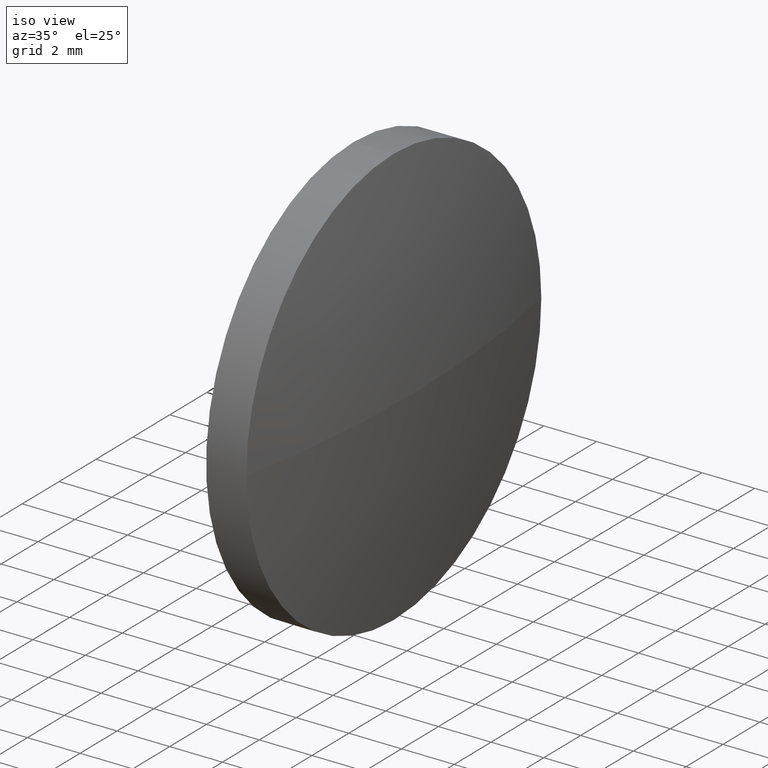
[diagram: clean part render]
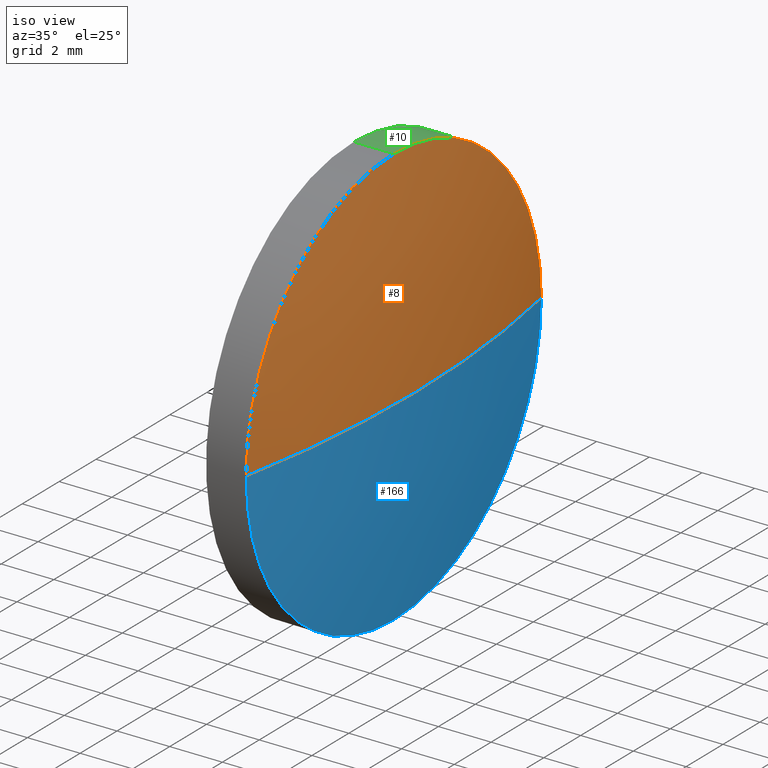
[diagram: same view with three faces highlighted in distinct colors, each labeled with its STEP entity id]
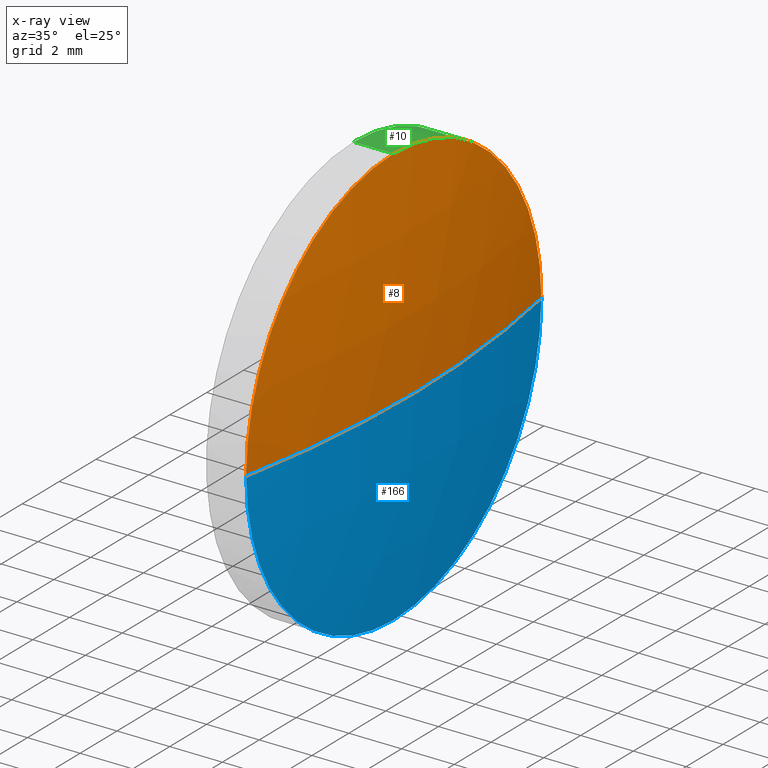
[diagram: x-ray of the same camera — body ghosted, the three highlighted faces saturated]
A machine part, iso view with three faces highlighted in distinct colors.
The next image is the same camera in x-ray (body ghosted, the three faces saturated) — at least one of them is partly hidden behind the body in this view.
Their STEP definitions:

[orange] entity #8 — the highlighted spherical surface has radius 41.4156 mm.
#5 = EDGE_LOOP ( 'NONE', ( #146, #112, #65, #143 ) ) ;
#7 = SPHERICAL_SURFACE ( 'NONE', #123, 41.41564102564085200 ) ;
#8 = ADVANCED_FACE ( 'NONE', ( #75 ), #7, .T. ) ;
#14 = EDGE_CURVE ( 'NONE', #33, #175, #99, .T. ) ;
#16 = CARTESIAN_POINT ( 'NONE',  ( 800.7893006300039400, 219.0208925470879300, 0.0000000000000000000 ) ) ;
#19 = CARTESIAN_POINT ( 'NONE',  ( 800.7893006300039400, 227.0208925470877000, 7.999999999999979600 ) ) ;
#29 = CARTESIAN_POINT ( 'NONE',  ( 760.1536596043630400, 227.0208925470879500, 0.0000000000000000000 ) ) ;
#31 = DIRECTION ( 'NONE',  ( -1.000000000000000000, 0.0000000000000000000, 0.0000000000000000000 ) ) ;
#33 = VERTEX_POINT ( 'NONE', #16 ) ;
#37 = EDGE_CURVE ( 'NONE', #38, #137, #95, .T. ) ;
#38 = VERTEX_POINT ( 'NONE', #69 ) ;
#42 = DIRECTION ( 'NONE',  ( 0.0000000000000000000, -1.224646799147353200E-016, 1.000000000000000000 ) ) ;
#52 = DIRECTION ( 'NONE',  ( 0.0000000000000000000, -1.000000000000000000, 0.0000000000000000000 ) ) ;
#53 = DIRECTION ( 'NONE',  ( -1.000000000000000000, -0.0000000000000000000, -0.0000000000000000000 ) ) ;
#60 = AXIS2_PLACEMENT_3D ( 'NONE', #29, #92, #31 ) ;
#65 = ORIENTED_EDGE ( 'NONE', *, *, #169, .F. ) ;
#69 = CARTESIAN_POINT ( 'NONE',  ( 801.5693006300040200, 227.0208925470879500, 0.0000000000000000000 ) ) ;
#73 = DIRECTION ( 'NONE',  ( 0.0000000000000000000, -1.000000000000000000, -1.224646799147353200E-016 ) ) ;
#74 = CARTESIAN_POINT ( 'NONE',  ( 760.1536596043630400, 227.0208925470879500, 0.0000000000000000000 ) ) ;
#75 = FACE_OUTER_BOUND ( 'NONE', #5, .T. ) ;
#85 = EDGE_CURVE ( 'NONE', #38, #33, #136, .T. ) ;
#90 = DIRECTION ( 'NONE',  ( 0.0000000000000000000, 0.0000000000000000000, 1.000000000000000000 ) ) ;
#92 = DIRECTION ( 'NONE',  ( 0.0000000000000000000, 0.0000000000000000000, -1.000000000000000000 ) ) ;
#95 = CIRCLE ( 'NONE', #163, 41.41564102564085200 ) ;
#99 = CIRCLE ( 'NONE', #171, 7.999999999999979600 ) ;
#105 = AXIS2_PLACEMENT_3D ( 'NONE', #119, #147, #90 ) ;
#111 = CIRCLE ( 'NONE', #105, 7.999999999999979600 ) ;
#112 = ORIENTED_EDGE ( 'NONE', *, *, #37, .T. ) ;
#119 = CARTESIAN_POINT ( 'NONE',  ( 800.7893006300039400, 227.0208925470877000, 0.0000000000000000000 ) ) ;
#123 = AXIS2_PLACEMENT_3D ( 'NONE', #74, #156, #52 ) ;
#127 = CARTESIAN_POINT ( 'NONE',  ( 760.1536596043630400, 227.0208925470879500, 0.0000000000000000000 ) ) ;
#134 = CARTESIAN_POINT ( 'NONE',  ( 800.7893006300039400, 235.0208925470877500, 9.797174393178569300E-016 ) ) ;
#136 = CIRCLE ( 'NONE', #60, 41.41564102564088000 ) ;
#137 = VERTEX_POINT ( 'NONE', #134 ) ;
#143 = ORIENTED_EDGE ( 'NONE', *, *, #14, .F. ) ;
#146 = ORIENTED_EDGE ( 'NONE', *, *, #85, .F. ) ;
#147 = DIRECTION ( 'NONE',  ( -1.000000000000000000, -0.0000000000000000000, -0.0000000000000000000 ) ) ;
#156 = DIRECTION ( 'NONE',  ( 0.0000000000000000000, 0.0000000000000000000, 1.000000000000000000 ) ) ;
#163 = AXIS2_PLACEMENT_3D ( 'NONE', #127, #42, #73 ) ;
#169 = EDGE_CURVE ( 'NONE', #175, #137, #111, .T. ) ;
#171 = AXIS2_PLACEMENT_3D ( 'NONE', #172, #53, #176 ) ;
#172 = CARTESIAN_POINT ( 'NONE',  ( 800.7893006300039400, 227.0208925470877000, 0.0000000000000000000 ) ) ;
#175 = VERTEX_POINT ( 'NONE', #19 ) ;
#176 = DIRECTION ( 'NONE',  ( 0.0000000000000000000, 0.0000000000000000000, 1.000000000000000000 ) ) ;

[blue] entity #166 — the highlighted spherical surface has radius 41.4156 mm.
#4 = DIRECTION ( 'NONE',  ( 0.0000000000000000000, -1.000000000000000000, 0.0000000000000000000 ) ) ;
#16 = CARTESIAN_POINT ( 'NONE',  ( 800.7893006300039400, 219.0208925470879300, 0.0000000000000000000 ) ) ;
#18 = AXIS2_PLACEMENT_3D ( 'NONE', #46, #28, #148 ) ;
#20 = SPHERICAL_SURFACE ( 'NONE', #25, 41.41564102564085200 ) ;
#25 = AXIS2_PLACEMENT_3D ( 'NONE', #149, #130, #4 ) ;
#28 = DIRECTION ( 'NONE',  ( -1.000000000000000000, -0.0000000000000000000, -0.0000000000000000000 ) ) ;
#29 = CARTESIAN_POINT ( 'NONE',  ( 760.1536596043630400, 227.0208925470879500, 0.0000000000000000000 ) ) ;
#31 = DIRECTION ( 'NONE',  ( -1.000000000000000000, 0.0000000000000000000, 0.0000000000000000000 ) ) ;
#33 = VERTEX_POINT ( 'NONE', #16 ) ;
#37 = EDGE_CURVE ( 'NONE', #38, #137, #95, .T. ) ;
#38 = VERTEX_POINT ( 'NONE', #69 ) ;
#42 = DIRECTION ( 'NONE',  ( 0.0000000000000000000, -1.224646799147353200E-016, 1.000000000000000000 ) ) ;
#45 = AXIS2_PLACEMENT_3D ( 'NONE', #79, #160, #107 ) ;
#46 = CARTESIAN_POINT ( 'NONE',  ( 800.7893006300039400, 227.0208925470877000, 0.0000000000000000000 ) ) ;
#49 = CIRCLE ( 'NONE', #45, 7.999999999999979600 ) ;
#60 = AXIS2_PLACEMENT_3D ( 'NONE', #29, #92, #31 ) ;
#69 = CARTESIAN_POINT ( 'NONE',  ( 801.5693006300040200, 227.0208925470879500, 0.0000000000000000000 ) ) ;
#73 = DIRECTION ( 'NONE',  ( 0.0000000000000000000, -1.000000000000000000, -1.224646799147353200E-016 ) ) ;
#79 = CARTESIAN_POINT ( 'NONE',  ( 800.7893006300039400, 227.0208925470877000, 0.0000000000000000000 ) ) ;
#80 = CARTESIAN_POINT ( 'NONE',  ( 800.7893006300039400, 227.0208925470877000, -7.999999999999979600 ) ) ;
#85 = EDGE_CURVE ( 'NONE', #38, #33, #136, .T. ) ;
#92 = DIRECTION ( 'NONE',  ( 0.0000000000000000000, 0.0000000000000000000, -1.000000000000000000 ) ) ;
#95 = CIRCLE ( 'NONE', #163, 41.41564102564085200 ) ;
#96 = ORIENTED_EDGE ( 'NONE', *, *, #37, .F. ) ;
#107 = DIRECTION ( 'NONE',  ( 0.0000000000000000000, 0.0000000000000000000, 1.000000000000000000 ) ) ;
#115 = ORIENTED_EDGE ( 'NONE', *, *, #133, .F. ) ;
#120 = ORIENTED_EDGE ( 'NONE', *, *, #85, .T. ) ;
#124 = ORIENTED_EDGE ( 'NONE', *, *, #178, .F. ) ;
#126 = FACE_OUTER_BOUND ( 'NONE', #183, .T. ) ;
#127 = CARTESIAN_POINT ( 'NONE',  ( 760.1536596043630400, 227.0208925470879500, 0.0000000000000000000 ) ) ;
#130 = DIRECTION ( 'NONE',  ( 0.0000000000000000000, 0.0000000000000000000, 1.000000000000000000 ) ) ;
#133 = EDGE_CURVE ( 'NONE', #157, #33, #182, .T. ) ;
#134 = CARTESIAN_POINT ( 'NONE',  ( 800.7893006300039400, 235.0208925470877500, 9.797174393178569300E-016 ) ) ;
#136 = CIRCLE ( 'NONE', #60, 41.41564102564088000 ) ;
#137 = VERTEX_POINT ( 'NONE', #134 ) ;
#148 = DIRECTION ( 'NONE',  ( 0.0000000000000000000, 0.0000000000000000000, 1.000000000000000000 ) ) ;
#149 = CARTESIAN_POINT ( 'NONE',  ( 760.1536596043630400, 227.0208925470879500, 0.0000000000000000000 ) ) ;
#157 = VERTEX_POINT ( 'NONE', #80 ) ;
#160 = DIRECTION ( 'NONE',  ( -1.000000000000000000, -0.0000000000000000000, -0.0000000000000000000 ) ) ;
#163 = AXIS2_PLACEMENT_3D ( 'NONE', #127, #42, #73 ) ;
#166 = ADVANCED_FACE ( 'NONE', ( #126 ), #20, .T. ) ;
#178 = EDGE_CURVE ( 'NONE', #137, #157, #49, .T. ) ;
#182 = CIRCLE ( 'NONE', #18, 7.999999999999979600 ) ;
#183 = EDGE_LOOP ( 'NONE', ( #96, #120, #115, #124 ) ) ;

[green] entity #10 — the highlighted cylindrical surface (partial cylindrical patch) has radius 8 mm, axis along (-1, -0, -0).
#10 = ADVANCED_FACE ( 'NONE', ( #113 ), #35, .T. ) ;
#15 = DIRECTION ( 'NONE',  ( -1.000000000000000000, -0.0000000000000000000, -0.0000000000000000000 ) ) ;
#19 = CARTESIAN_POINT ( 'NONE',  ( 800.7893006300039400, 227.0208925470877000, 7.999999999999979600 ) ) ;
#24 = VERTEX_POINT ( 'NONE', #89 ) ;
#35 = CYLINDRICAL_SURFACE ( 'NONE', #94, 7.999999999999979600 ) ;
#44 = DIRECTION ( 'NONE',  ( 0.0000000000000000000, 0.0000000000000000000, 1.000000000000000000 ) ) ;
#45 = AXIS2_PLACEMENT_3D ( 'NONE', #79, #160, #107 ) ;
#49 = CIRCLE ( 'NONE', #45, 7.999999999999979600 ) ;
#51 = DIRECTION ( 'NONE',  ( 0.0000000000000000000, 0.0000000000000000000, 1.000000000000000000 ) ) ;
#54 = CARTESIAN_POINT ( 'NONE',  ( 799.2693006300039500, 227.0208925470877000, 7.999999999999979600 ) ) ;
#55 = ORIENTED_EDGE ( 'NONE', *, *, #169, .T. ) ;
#56 = DIRECTION ( 'NONE',  ( -1.000000000000000000, -0.0000000000000000000, -0.0000000000000000000 ) ) ;
#59 = LINE ( 'NONE', #159, #93 ) ;
#66 = EDGE_CURVE ( 'NONE', #157, #24, #59, .T. ) ;
#67 = VERTEX_POINT ( 'NONE', #54 ) ;
#71 = ORIENTED_EDGE ( 'NONE', *, *, #66, .T. ) ;
#79 = CARTESIAN_POINT ( 'NONE',  ( 800.7893006300039400, 227.0208925470877000, 0.0000000000000000000 ) ) ;
#80 = CARTESIAN_POINT ( 'NONE',  ( 800.7893006300039400, 227.0208925470877000, -7.999999999999979600 ) ) ;
#83 = EDGE_LOOP ( 'NONE', ( #168, #71, #129, #102, #55 ) ) ;
#89 = CARTESIAN_POINT ( 'NONE',  ( 799.2693006300039500, 227.0208925470877000, -7.999999999999979600 ) ) ;
#90 = DIRECTION ( 'NONE',  ( 0.0000000000000000000, 0.0000000000000000000, 1.000000000000000000 ) ) ;
#93 = VECTOR ( 'NONE', #15, 1000.000000000000000 ) ;
#94 = AXIS2_PLACEMENT_3D ( 'NONE', #98, #128, #51 ) ;
#98 = CARTESIAN_POINT ( 'NONE',  ( 797.6213281570125000, 227.0208925470877000, 0.0000000000000000000 ) ) ;
#102 = ORIENTED_EDGE ( 'NONE', *, *, #165, .F. ) ;
#103 = CARTESIAN_POINT ( 'NONE',  ( 797.6213281570125000, 227.0208925470877000, 7.999999999999979600 ) ) ;
#105 = AXIS2_PLACEMENT_3D ( 'NONE', #119, #147, #90 ) ;
#107 = DIRECTION ( 'NONE',  ( 0.0000000000000000000, 0.0000000000000000000, 1.000000000000000000 ) ) ;
#108 = CIRCLE ( 'NONE', #155, 7.999999999999979600 ) ;
#111 = CIRCLE ( 'NONE', #105, 7.999999999999979600 ) ;
#113 = FACE_OUTER_BOUND ( 'NONE', #83, .T. ) ;
#119 = CARTESIAN_POINT ( 'NONE',  ( 800.7893006300039400, 227.0208925470877000, 0.0000000000000000000 ) ) ;
#128 = DIRECTION ( 'NONE',  ( -1.000000000000000000, -0.0000000000000000000, -0.0000000000000000000 ) ) ;
#129 = ORIENTED_EDGE ( 'NONE', *, *, #132, .F. ) ;
#132 = EDGE_CURVE ( 'NONE', #67, #24, #108, .T. ) ;
#134 = CARTESIAN_POINT ( 'NONE',  ( 800.7893006300039400, 235.0208925470877500, 9.797174393178569300E-016 ) ) ;
#137 = VERTEX_POINT ( 'NONE', #134 ) ;
#138 = LINE ( 'NONE', #103, #186 ) ;
#147 = DIRECTION ( 'NONE',  ( -1.000000000000000000, -0.0000000000000000000, -0.0000000000000000000 ) ) ;
#155 = AXIS2_PLACEMENT_3D ( 'NONE', #164, #56, #44 ) ;
#157 = VERTEX_POINT ( 'NONE', #80 ) ;
#159 = CARTESIAN_POINT ( 'NONE',  ( 797.6213281570125000, 227.0208925470877000, -7.999999999999979600 ) ) ;
#160 = DIRECTION ( 'NONE',  ( -1.000000000000000000, -0.0000000000000000000, -0.0000000000000000000 ) ) ;
#164 = CARTESIAN_POINT ( 'NONE',  ( 799.2693006300039500, 227.0208925470877000, 0.0000000000000000000 ) ) ;
#165 = EDGE_CURVE ( 'NONE', #175, #67, #138, .T. ) ;
#168 = ORIENTED_EDGE ( 'NONE', *, *, #178, .T. ) ;
#169 = EDGE_CURVE ( 'NONE', #175, #137, #111, .T. ) ;
#175 = VERTEX_POINT ( 'NONE', #19 ) ;
#178 = EDGE_CURVE ( 'NONE', #137, #157, #49, .T. ) ;
#181 = DIRECTION ( 'NONE',  ( -1.000000000000000000, -0.0000000000000000000, -0.0000000000000000000 ) ) ;
#186 = VECTOR ( 'NONE', #181, 1000.000000000000000 ) ;